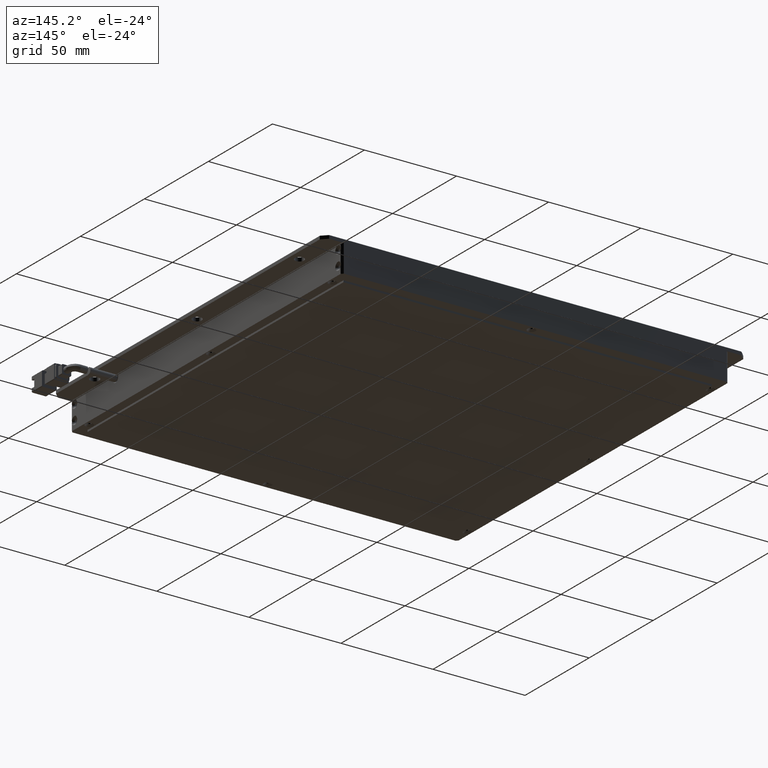
[diagram: clean part render]
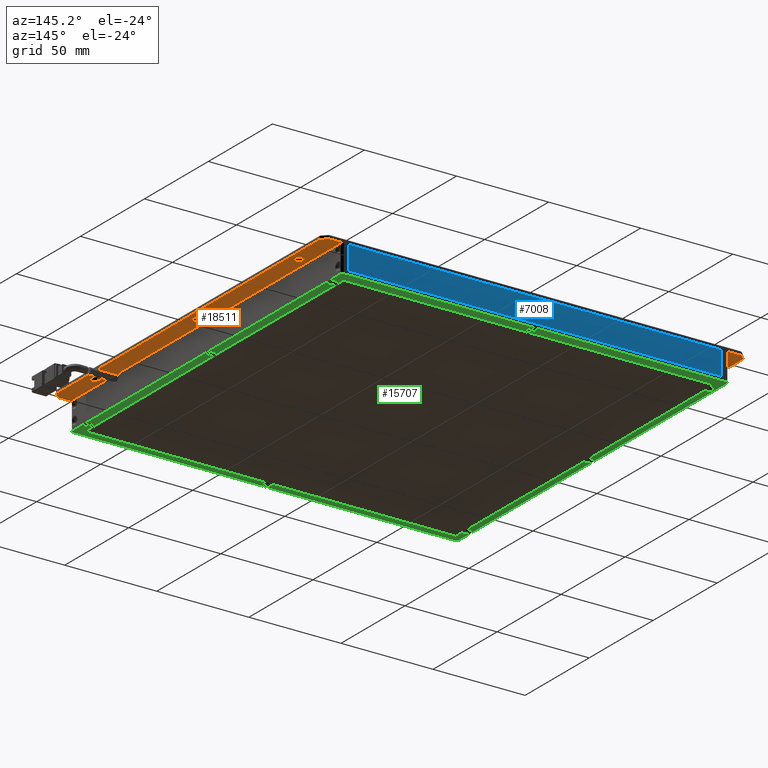
[diagram: same view with three faces highlighted in distinct colors, each labeled with its STEP entity id]
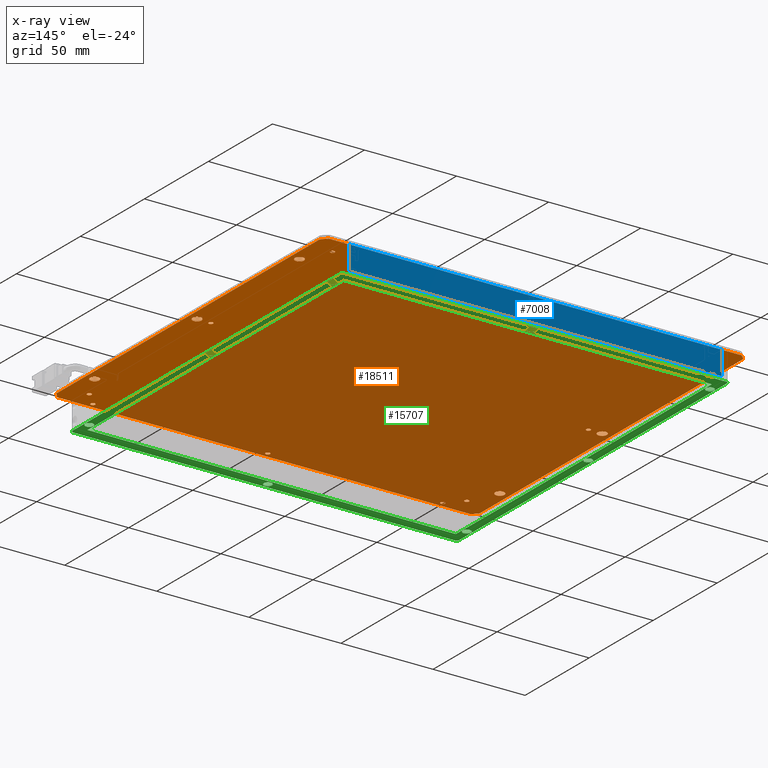
[diagram: x-ray of the same camera — body ghosted, the three highlighted faces saturated]
A machine part, auxiliary view with three faces highlighted in distinct colors.
The next image is the same camera in x-ray (body ghosted, the three faces saturated) — at least one of them is partly hidden behind the body in this view.
Their STEP definitions:

[orange] entity #18511 — the highlighted planar face has unit normal (0, -0, 1).
#229 = FACE_BOUND ( 'NONE', #9982, .T. ) ;
#246 = AXIS2_PLACEMENT_3D ( 'NONE', #10545, #17458, #5450 ) ;
#363 = LINE ( 'NONE', #4861, #6074 ) ;
#393 = EDGE_LOOP ( 'NONE', ( #5492, #12979 ) ) ;
#531 = CARTESIAN_POINT ( 'NONE',  ( -88.83424941752386400, -33.37875398278082900, -2.364688306277784600E-011 ) ) ;
#756 = CARTESIAN_POINT ( 'NONE',  ( 121.1657505824761100, -33.37875398278082900, -2.364644938190885200E-011 ) ) ;
#970 = ORIENTED_EDGE ( 'NONE', *, *, #3923, .F. ) ;
#990 = DIRECTION ( 'NONE',  ( 1.000000000000000000, 0.0000000000000000000, 0.0000000000000000000 ) ) ;
#1039 = VECTOR ( 'NONE', #12226, 1000.000000000000000 ) ;
#1086 = DIRECTION ( 'NONE',  ( 0.0000000000000000000, 0.0000000000000000000, -1.000000000000000000 ) ) ;
#1169 = DIRECTION ( 'NONE',  ( 0.0000000000000000000, 0.0000000000000000000, -1.000000000000000000 ) ) ;
#1347 = AXIS2_PLACEMENT_3D ( 'NONE', #6869, #13726, #13489 ) ;
#1349 = FACE_BOUND ( 'NONE', #15495, .T. ) ;
#1381 = AXIS2_PLACEMENT_3D ( 'NONE', #8571, #3570, #5157 ) ;
#1403 = DIRECTION ( 'NONE',  ( 1.000000000000000000, 0.0000000000000000000, 0.0000000000000000000 ) ) ;
#1480 = CIRCLE ( 'NONE', #15831, 1.199999999999992600 ) ;
#1505 = ORIENTED_EDGE ( 'NONE', *, *, #2683, .F. ) ;
#1537 = DIRECTION ( 'NONE',  ( 1.000000000000000000, 0.0000000000000000000, 0.0000000000000000000 ) ) ;
#1557 = CARTESIAN_POINT ( 'NONE',  ( -83.83424941752389300, 61.62124601721919200, -2.364644938190885200E-011 ) ) ;
#1694 = ORIENTED_EDGE ( 'NONE', *, *, #6969, .F. ) ;
#1795 = CIRCLE ( 'NONE', #19527, 2.500000000000002200 ) ;
#1838 = ORIENTED_EDGE ( 'NONE', *, *, #10599, .F. ) ;
#1847 = ORIENTED_EDGE ( 'NONE', *, *, #4278, .F. ) ;
#1885 = FACE_BOUND ( 'NONE', #19347, .T. ) ;
#2017 = ORIENTED_EDGE ( 'NONE', *, *, #8278, .F. ) ;
#2040 = EDGE_LOOP ( 'NONE', ( #5732, #1694 ) ) ;
#2111 = DIRECTION ( 'NONE',  ( 0.0000000000000000000, 0.0000000000000000000, -1.000000000000000000 ) ) ;
#2122 = ORIENTED_EDGE ( 'NONE', *, *, #6072, .F. ) ;
#2139 = DIRECTION ( 'NONE',  ( 0.0000000000000000000, 0.0000000000000000000, -1.000000000000000000 ) ) ;
#2318 = EDGE_LOOP ( 'NONE', ( #2122, #6669 ) ) ;
#2326 = EDGE_CURVE ( 'NONE', #3457, #10579, #20048, .T. ) ;
#2382 = ORIENTED_EDGE ( 'NONE', *, *, #3903, .F. ) ;
#2413 = AXIS2_PLACEMENT_3D ( 'NONE', #10281, #12112, #3381 ) ;
#2480 = AXIS2_PLACEMENT_3D ( 'NONE', #11368, #4467, #2951 ) ;
#2683 = EDGE_CURVE ( 'NONE', #6189, #16360, #12439, .T. ) ;
#2758 = AXIS2_PLACEMENT_3D ( 'NONE', #8763, #12353, #15868 ) ;
#2864 = EDGE_CURVE ( 'NONE', #21563, #21719, #5620, .T. ) ;
#2893 = ORIENTED_EDGE ( 'NONE', *, *, #2326, .F. ) ;
#2951 = DIRECTION ( 'NONE',  ( 1.000000000000000000, 0.0000000000000000000, 0.0000000000000000000 ) ) ;
#3143 = AXIS2_PLACEMENT_3D ( 'NONE', #4461, #16324, #21676 ) ;
#3197 = VERTEX_POINT ( 'NONE', #13739 ) ;
#3333 = CARTESIAN_POINT ( 'NONE',  ( 119.9657505824761000, -128.3787539827808100, -2.364644938190885200E-011 ) ) ;
#3381 = DIRECTION ( 'NONE',  ( 1.000000000000000000, 0.0000000000000000000, 0.0000000000000000000 ) ) ;
#3402 = DIRECTION ( 'NONE',  ( 0.0000000000000000000, 0.0000000000000000000, -1.000000000000000000 ) ) ;
#3428 = PLANE ( 'NONE',  #1381 ) ;
#3447 = CARTESIAN_POINT ( 'NONE',  ( 131.1657505824760800, 46.62124601721915000, -2.364688306277784600E-011 ) ) ;
#3451 = EDGE_CURVE ( 'NONE', #6651, #6008, #8259, .T. ) ;
#3457 = VERTEX_POINT ( 'NONE', #17190 ) ;
#3515 = EDGE_CURVE ( 'NONE', #4944, #3197, #21308, .T. ) ;
#3570 = DIRECTION ( 'NONE',  ( 0.0000000000000000000, -0.0000000000000000000, 1.000000000000000000 ) ) ;
#3644 = ORIENTED_EDGE ( 'NONE', *, *, #9974, .F. ) ;
#3685 = CARTESIAN_POINT ( 'NONE',  ( -93.33424941752387800, 72.62124601721916400, -2.364688306277784600E-011 ) ) ;
#3828 = AXIS2_PLACEMENT_3D ( 'NONE', #11289, #6368, #20378 ) ;
#3838 = VERTEX_POINT ( 'NONE', #18223 ) ;
#3846 = CIRCLE ( 'NONE', #13163, 1.200000000000006600 ) ;
#3903 = EDGE_CURVE ( 'NONE', #4430, #12805, #363, .T. ) ;
#3923 = EDGE_CURVE ( 'NONE', #21719, #21563, #1480, .T. ) ;
#4054 = DIRECTION ( 'NONE',  ( 1.000000000000000000, 0.0000000000000000000, 0.0000000000000000000 ) ) ;
#4114 = CARTESIAN_POINT ( 'NONE',  ( 122.3657505824761200, -128.3787539827808100, -2.364644938190885200E-011 ) ) ;
#4120 = DIRECTION ( 'NONE',  ( 0.0000000000000000000, 0.0000000000000000000, -1.000000000000000000 ) ) ;
#4189 = EDGE_CURVE ( 'NONE', #10642, #8831, #13202, .T. ) ;
#4218 = EDGE_LOOP ( 'NONE', ( #21781, #16938 ) ) ;
#4219 = VERTEX_POINT ( 'NONE', #531 ) ;
#4223 = EDGE_CURVE ( 'NONE', #11342, #7934, #6146, .T. ) ;
#4278 = EDGE_CURVE ( 'NONE', #9821, #19799, #16460, .T. ) ;
#4299 = DIRECTION ( 'NONE',  ( 0.0000000000000000000, 0.0000000000000000000, -1.000000000000000000 ) ) ;
#4302 = FACE_BOUND ( 'NONE', #19596, .T. ) ;
#4306 = DIRECTION ( 'NONE',  ( 1.000000000000000000, 0.0000000000000000000, 0.0000000000000000000 ) ) ;
#4316 = DIRECTION ( 'NONE',  ( 0.0000000000000000000, 0.0000000000000000000, -1.000000000000000000 ) ) ;
#4332 = EDGE_CURVE ( 'NONE', #3197, #4944, #22422, .T. ) ;
#4335 = DIRECTION ( 'NONE',  ( 0.0000000000000000000, 0.0000000000000000000, -1.000000000000000000 ) ) ;
#4395 = EDGE_LOOP ( 'NONE', ( #970, #11569 ) ) ;
#4422 = CARTESIAN_POINT ( 'NONE',  ( -82.63424941752387600, -33.37875398278082900, -2.364644938190885200E-011 ) ) ;
#4430 = VERTEX_POINT ( 'NONE', #17066 ) ;
#4460 = DIRECTION ( 'NONE',  ( -0.0000000000000000000, -1.000000000000000000, -0.0000000000000000000 ) ) ;
#4461 = CARTESIAN_POINT ( 'NONE',  ( 121.1657505824760500, 61.62124601721919200, -2.364644938190885200E-011 ) ) ;
#4467 = DIRECTION ( 'NONE',  ( 0.0000000000000000000, 0.0000000000000000000, -1.000000000000000000 ) ) ;
#4541 = ORIENTED_EDGE ( 'NONE', *, *, #4189, .F. ) ;
#4589 = FACE_BOUND ( 'NONE', #14136, .T. ) ;
#4597 = VERTEX_POINT ( 'NONE', #3447 ) ;
#4707 = VERTEX_POINT ( 'NONE', #10794 ) ;
#4861 = CARTESIAN_POINT ( 'NONE',  ( -96.33424941752389300, -136.3787539827808100, -2.364688306277784600E-011 ) ) ;
#4944 = VERTEX_POINT ( 'NONE', #11319 ) ;
#5043 = DIRECTION ( 'NONE',  ( 1.000000000000000000, 0.0000000000000000000, 0.0000000000000000000 ) ) ;
#5048 = EDGE_LOOP ( 'NONE', ( #17440, #21914 ) ) ;
#5121 = CIRCLE ( 'NONE', #20062, 1.200000000000006600 ) ;
#5157 = DIRECTION ( 'NONE',  ( 1.000000000000000000, 0.0000000000000000000, -0.0000000000000000000 ) ) ;
#5428 = DIRECTION ( 'NONE',  ( 0.0000000000000000000, 0.0000000000000000000, -1.000000000000000000 ) ) ;
#5450 = DIRECTION ( 'NONE',  ( 1.000000000000000000, 0.0000000000000000000, 0.0000000000000000000 ) ) ;
#5477 = ORIENTED_EDGE ( 'NONE', *, *, #19815, .F. ) ;
#5489 = CARTESIAN_POINT ( 'NONE',  ( -91.33424941752386400, -113.3787539827808200, -2.364688306277784600E-011 ) ) ;
#5492 = ORIENTED_EDGE ( 'NONE', *, *, #4332, .F. ) ;
#5505 = EDGE_LOOP ( 'NONE', ( #16513, #2017 ) ) ;
#5620 = CIRCLE ( 'NONE', #21034, 1.199999999999992600 ) ;
#5684 = DIRECTION ( 'NONE',  ( 1.000000000000000000, 0.0000000000000000000, 0.0000000000000000000 ) ) ;
#5732 = ORIENTED_EDGE ( 'NONE', *, *, #8808, .F. ) ;
#5745 = DIRECTION ( 'NONE',  ( 1.000000000000000000, 0.0000000000000000000, 0.0000000000000000000 ) ) ;
#5772 = EDGE_CURVE ( 'NONE', #15290, #15230, #17116, .T. ) ;
#5828 = ORIENTED_EDGE ( 'NONE', *, *, #21534, .F. ) ;
#5901 = AXIS2_PLACEMENT_3D ( 'NONE', #16323, #11357, #4306 ) ;
#5939 = FACE_BOUND ( 'NONE', #2318, .T. ) ;
#6008 = VERTEX_POINT ( 'NONE', #14320 ) ;
#6049 = VERTEX_POINT ( 'NONE', #4114 ) ;
#6072 = EDGE_CURVE ( 'NONE', #6049, #7483, #5121, .T. ) ;
#6074 = VECTOR ( 'NONE', #22185, 1000.000000000000100 ) ;
#6102 = DIRECTION ( 'NONE',  ( 1.000000000000000000, 0.0000000000000000000, 0.0000000000000000000 ) ) ;
#6139 = CARTESIAN_POINT ( 'NONE',  ( 113.6657505824760800, 69.62124601721916400, -2.364644938190885200E-011 ) ) ;
#6146 = CIRCLE ( 'NONE', #14671, 1.200000000000006600 ) ;
#6169 = CARTESIAN_POINT ( 'NONE',  ( -91.33424941752386400, -113.3787539827808200, -2.364688306277784600E-011 ) ) ;
#6189 = VERTEX_POINT ( 'NONE', #9548 ) ;
#6223 = CARTESIAN_POINT ( 'NONE',  ( 126.1657505824760600, -113.3787539827808200, -2.364688306277784600E-011 ) ) ;
#6277 = EDGE_LOOP ( 'NONE', ( #11247, #6819 ) ) ;
#6312 = VERTEX_POINT ( 'NONE', #22480 ) ;
#6316 = DIRECTION ( 'NONE',  ( 1.000000000000000000, 0.0000000000000000000, 0.0000000000000000000 ) ) ;
#6368 = DIRECTION ( 'NONE',  ( 0.0000000000000000000, 0.0000000000000000000, -1.000000000000000000 ) ) ;
#6372 = DIRECTION ( 'NONE',  ( 0.0000000000000000000, 0.0000000000000000000, -1.000000000000000000 ) ) ;
#6400 = CARTESIAN_POINT ( 'NONE',  ( 121.1657505824761100, -33.37875398278082900, -2.364644938190885200E-011 ) ) ;
#6604 = ORIENTED_EDGE ( 'NONE', *, *, #14075, .F. ) ;
#6651 = VERTEX_POINT ( 'NONE', #20022 ) ;
#6669 = ORIENTED_EDGE ( 'NONE', *, *, #19528, .F. ) ;
#6678 = AXIS2_PLACEMENT_3D ( 'NONE', #18427, #6372, #990 ) ;
#6739 = EDGE_CURVE ( 'NONE', #6312, #4597, #18640, .T. ) ;
#6758 = CIRCLE ( 'NONE', #11581, 2.500000000000002200 ) ;
#6819 = ORIENTED_EDGE ( 'NONE', *, *, #16430, .F. ) ;
#6862 = DIRECTION ( 'NONE',  ( 0.0000000000000000000, 0.0000000000000000000, -1.000000000000000000 ) ) ;
#6869 = CARTESIAN_POINT ( 'NONE',  ( -83.83424941752387800, -33.37875398278082900, -2.364644938190885200E-011 ) ) ;
#6963 = CARTESIAN_POINT ( 'NONE',  ( -83.83424941752387800, -128.3787539827808100, -2.364644938190885200E-011 ) ) ;
#6969 = EDGE_CURVE ( 'NONE', #14372, #11643, #20606, .T. ) ;
#7028 = CARTESIAN_POINT ( 'NONE',  ( -83.83424941752387800, -33.37875398278082900, -2.364644938190885200E-011 ) ) ;
#7084 = CARTESIAN_POINT ( 'NONE',  ( -93.33424941752387800, 72.62124601721916400, -2.364753358408133700E-011 ) ) ;
#7088 = VERTEX_POINT ( 'NONE', #9322 ) ;
#7100 = EDGE_CURVE ( 'NONE', #7842, #18027, #11616, .T. ) ;
#7103 = CIRCLE ( 'NONE', #8057, 2.500000000000002200 ) ;
#7113 = DIRECTION ( 'NONE',  ( -0.7071067811865474600, -0.7071067811865474600, 0.0000000000000000000 ) ) ;
#7141 = ORIENTED_EDGE ( 'NONE', *, *, #6739, .F. ) ;
#7298 = AXIS2_PLACEMENT_3D ( 'NONE', #12431, #5428, #12276 ) ;
#7389 = CIRCLE ( 'NONE', #12724, 1.200000000000006600 ) ;
#7448 = CARTESIAN_POINT ( 'NONE',  ( 133.6657505824761400, 72.62124601721916400, -2.364688306277784600E-011 ) ) ;
#7458 = EDGE_LOOP ( 'NONE', ( #11681, #18281 ) ) ;
#7483 = VERTEX_POINT ( 'NONE', #3333 ) ;
#7500 = CARTESIAN_POINT ( 'NONE',  ( 122.3657505824760700, 61.62124601721919200, -2.364644938190885200E-011 ) ) ;
#7564 = CARTESIAN_POINT ( 'NONE',  ( -85.03424941752388100, 61.62124601721919200, -2.364644938190885200E-011 ) ) ;
#7641 = CARTESIAN_POINT ( 'NONE',  ( -83.83424941752389300, 61.62124601721919200, -2.364644938190885200E-011 ) ) ;
#7761 = CARTESIAN_POINT ( 'NONE',  ( 113.6657505824761600, -136.3787539827808900, -2.364644938190885200E-011 ) ) ;
#7838 = EDGE_CURVE ( 'NONE', #12805, #13879, #22136, .T. ) ;
#7842 = VERTEX_POINT ( 'NONE', #22521 ) ;
#7861 = DIRECTION ( 'NONE',  ( 1.000000000000000000, 0.0000000000000000000, 0.0000000000000000000 ) ) ;
#7926 = VERTEX_POINT ( 'NONE', #10586 ) ;
#7934 = VERTEX_POINT ( 'NONE', #12255 ) ;
#7975 = EDGE_LOOP ( 'NONE', ( #14223, #18965 ) ) ;
#8057 = AXIS2_PLACEMENT_3D ( 'NONE', #20838, #6862, #5043 ) ;
#8109 = FACE_BOUND ( 'NONE', #4395, .T. ) ;
#8140 = CARTESIAN_POINT ( 'NONE',  ( -96.33424941752389300, 69.62124601721916400, -2.364753358408133700E-011 ) ) ;
#8158 = AXIS2_PLACEMENT_3D ( 'NONE', #6139, #4299, #7861 ) ;
#8230 = CIRCLE ( 'NONE', #12599, 1.200000000000006600 ) ;
#8232 = ORIENTED_EDGE ( 'NONE', *, *, #9666, .F. ) ;
#8259 = CIRCLE ( 'NONE', #18569, 1.200000000000006600 ) ;
#8278 = EDGE_CURVE ( 'NONE', #15230, #15290, #8230, .T. ) ;
#8430 = CARTESIAN_POINT ( 'NONE',  ( 133.6657505824760800, 69.62124601721916400, -2.364688306277784600E-011 ) ) ;
#8450 = CARTESIAN_POINT ( 'NONE',  ( 133.6657505824760800, -139.3787539827808400, -2.364688306277784600E-011 ) ) ;
#8497 = EDGE_LOOP ( 'NONE', ( #9685, #4541 ) ) ;
#8539 = VERTEX_POINT ( 'NONE', #21887 ) ;
#8571 = CARTESIAN_POINT ( 'NONE',  ( 133.6657505824760800, 72.62124601721916400, -2.364688306277784600E-011 ) ) ;
#8601 = DIRECTION ( 'NONE',  ( 0.0000000000000000000, 0.0000000000000000000, -1.000000000000000000 ) ) ;
#8763 = CARTESIAN_POINT ( 'NONE',  ( -76.33424941752390700, 69.62124601721916400, -2.364644938190885200E-011 ) ) ;
#8808 = EDGE_CURVE ( 'NONE', #11643, #14372, #7103, .T. ) ;
#8831 = VERTEX_POINT ( 'NONE', #17185 ) ;
#8866 = DIRECTION ( 'NONE',  ( 1.000000000000000000, 0.0000000000000000000, 0.0000000000000000000 ) ) ;
#8904 = FACE_BOUND ( 'NONE', #6277, .T. ) ;
#8914 = ORIENTED_EDGE ( 'NONE', *, *, #18481, .F. ) ;
#8930 = CARTESIAN_POINT ( 'NONE',  ( 18.66575058247609000, 69.62124601721916400, -2.364644938190885200E-011 ) ) ;
#8960 = CARTESIAN_POINT ( 'NONE',  ( 18.66575058247609000, -136.3787539827808600, -2.364644938190885200E-011 ) ) ;
#8968 = CARTESIAN_POINT ( 'NONE',  ( -75.13424941752391800, 69.62124601721916400, -2.364644938190885200E-011 ) ) ;
#8985 = ORIENTED_EDGE ( 'NONE', *, *, #10004, .F. ) ;
#9173 = FACE_BOUND ( 'NONE', #2040, .T. ) ;
#9322 = CARTESIAN_POINT ( 'NONE',  ( -77.53424941752391000, -136.3787539827808100, -2.364644938190885200E-011 ) ) ;
#9541 = DIRECTION ( 'NONE',  ( 1.000000000000000000, 0.0000000000000000000, 0.0000000000000000000 ) ) ;
#9548 = CARTESIAN_POINT ( 'NONE',  ( 112.4657505824761500, -136.3787539827808900, -2.364644938190885200E-011 ) ) ;
#9605 = AXIS2_PLACEMENT_3D ( 'NONE', #6963, #8601, #15342 ) ;
#9653 = EDGE_CURVE ( 'NONE', #19575, #20919, #18742, .T. ) ;
#9657 = CIRCLE ( 'NONE', #3143, 1.200000000000006600 ) ;
#9666 = EDGE_CURVE ( 'NONE', #12845, #4430, #15500, .T. ) ;
#9685 = ORIENTED_EDGE ( 'NONE', *, *, #21090, .F. ) ;
#9706 = CARTESIAN_POINT ( 'NONE',  ( -91.33424941752386400, -33.37875398278082900, -2.364688306277784600E-011 ) ) ;
#9733 = FACE_BOUND ( 'NONE', #8497, .T. ) ;
#9821 = VERTEX_POINT ( 'NONE', #9827 ) ;
#9827 = CARTESIAN_POINT ( 'NONE',  ( -88.83424941752387800, 46.62124601721917800, -2.364688306277784600E-011 ) ) ;
#9865 = DIRECTION ( 'NONE',  ( 0.0000000000000000000, 0.0000000000000000000, -1.000000000000000000 ) ) ;
#9974 = EDGE_CURVE ( 'NONE', #7926, #14222, #10749, .T. ) ;
#9978 = VECTOR ( 'NONE', #19729, 1000.000000000000000 ) ;
#9982 = EDGE_LOOP ( 'NONE', ( #10178, #6604 ) ) ;
#10004 = EDGE_CURVE ( 'NONE', #10579, #12845, #17557, .T. ) ;
#10093 = DIRECTION ( 'NONE',  ( 1.000000000000000000, 0.0000000000000000000, 0.0000000000000000000 ) ) ;
#10123 = AXIS2_PLACEMENT_3D ( 'NONE', #10670, #2111, #19312 ) ;
#10130 = CARTESIAN_POINT ( 'NONE',  ( 114.8657505824761700, -136.3787539827808900, -2.364644938190885200E-011 ) ) ;
#10147 = EDGE_CURVE ( 'NONE', #4597, #6312, #15657, .T. ) ;
#10178 = ORIENTED_EDGE ( 'NONE', *, *, #14400, .F. ) ;
#10219 = CARTESIAN_POINT ( 'NONE',  ( -82.63424941752390400, 61.62124601721919200, -2.364644938190885200E-011 ) ) ;
#10281 = CARTESIAN_POINT ( 'NONE',  ( -91.33424941752387800, 46.62124601721917800, -2.364688306277784600E-011 ) ) ;
#10345 = VERTEX_POINT ( 'NONE', #14786 ) ;
#10440 = DIRECTION ( 'NONE',  ( 1.000000000000000000, 0.0000000000000000000, 0.0000000000000000000 ) ) ;
#10522 = CIRCLE ( 'NONE', #15481, 1.199999999999992600 ) ;
#10545 = CARTESIAN_POINT ( 'NONE',  ( 128.6657505824760500, -113.3787539827808200, -2.364688306277784600E-011 ) ) ;
#10563 = CARTESIAN_POINT ( 'NONE',  ( -76.33424941752390700, 69.62124601721916400, -2.364644938190885200E-011 ) ) ;
#10579 = VERTEX_POINT ( 'NONE', #7084 ) ;
#10586 = CARTESIAN_POINT ( 'NONE',  ( 119.9657505824760500, 61.62124601721919200, -2.364644938190885200E-011 ) ) ;
#10599 = EDGE_CURVE ( 'NONE', #18027, #3457, #20200, .T. ) ;
#10642 = VERTEX_POINT ( 'NONE', #22430 ) ;
#10670 = CARTESIAN_POINT ( 'NONE',  ( 121.1657505824760500, 61.62124601721919200, -2.364644938190885200E-011 ) ) ;
#10749 = CIRCLE ( 'NONE', #10123, 1.200000000000006600 ) ;
#10794 = CARTESIAN_POINT ( 'NONE',  ( -88.83424941752386400, -113.3787539827808200, -2.364688306277784600E-011 ) ) ;
#10817 = ORIENTED_EDGE ( 'NONE', *, *, #17753, .F. ) ;
#10837 = VECTOR ( 'NONE', #4460, 1000.000000000000000 ) ;
#10992 = DIRECTION ( 'NONE',  ( 1.000000000000000000, 0.0000000000000000000, 0.0000000000000000000 ) ) ;
#11014 = AXIS2_PLACEMENT_3D ( 'NONE', #8930, #19566, #8866 ) ;
#11065 = DIRECTION ( 'NONE',  ( 0.0000000000000000000, 0.0000000000000000000, -1.000000000000000000 ) ) ;
#11247 = ORIENTED_EDGE ( 'NONE', *, *, #12902, .F. ) ;
#11289 = CARTESIAN_POINT ( 'NONE',  ( -76.33424941752390700, -136.3787539827808100, -2.364644938190885200E-011 ) ) ;
#11296 = DIRECTION ( 'NONE',  ( 1.000000000000000000, 0.0000000000000000000, 0.0000000000000000000 ) ) ;
#11319 = CARTESIAN_POINT ( 'NONE',  ( 17.46575058247609700, -136.3787539827808600, -2.364644938190885200E-011 ) ) ;
#11342 = VERTEX_POINT ( 'NONE', #15547 ) ;
#11357 = DIRECTION ( 'NONE',  ( 0.0000000000000000000, 0.0000000000000000000, -1.000000000000000000 ) ) ;
#11368 = CARTESIAN_POINT ( 'NONE',  ( 18.66575058247609000, -136.3787539827808600, -2.364644938190885200E-011 ) ) ;
#11480 = CARTESIAN_POINT ( 'NONE',  ( -93.33424941752387800, -139.3787539827808400, -2.364688306277784600E-011 ) ) ;
#11522 = ORIENTED_EDGE ( 'NONE', *, *, #7838, .F. ) ;
#11525 = DIRECTION ( 'NONE',  ( 1.000000000000000000, 0.0000000000000000000, 0.0000000000000000000 ) ) ;
#11526 = VERTEX_POINT ( 'NONE', #18443 ) ;
#11569 = ORIENTED_EDGE ( 'NONE', *, *, #2864, .F. ) ;
#11575 = AXIS2_PLACEMENT_3D ( 'NONE', #8960, #21207, #15848 ) ;
#11581 = AXIS2_PLACEMENT_3D ( 'NONE', #9706, #1086, #6102 ) ;
#11616 = LINE ( 'NONE', #7448, #9978 ) ;
#11633 = LINE ( 'NONE', #19149, #20886 ) ;
#11643 = VERTEX_POINT ( 'NONE', #17148 ) ;
#11681 = ORIENTED_EDGE ( 'NONE', *, *, #15125, .F. ) ;
#11714 = CARTESIAN_POINT ( 'NONE',  ( -93.83424941752386400, -33.37875398278082900, -2.364688306277784600E-011 ) ) ;
#11904 = CARTESIAN_POINT ( 'NONE',  ( 113.6657505824760800, 69.62124601721916400, -2.364644938190885200E-011 ) ) ;
#12112 = DIRECTION ( 'NONE',  ( 0.0000000000000000000, 0.0000000000000000000, -1.000000000000000000 ) ) ;
#12176 = DIRECTION ( 'NONE',  ( 0.0000000000000000000, 0.0000000000000000000, -1.000000000000000000 ) ) ;
#12226 = DIRECTION ( 'NONE',  ( -1.000000000000000000, -0.0000000000000000000, 0.0000000000000000000 ) ) ;
#12255 = CARTESIAN_POINT ( 'NONE',  ( 122.3657505824761200, -33.37875398278082900, -2.364644938190885200E-011 ) ) ;
#12276 = DIRECTION ( 'NONE',  ( 1.000000000000000000, 0.0000000000000000000, 0.0000000000000000000 ) ) ;
#12296 = DIRECTION ( 'NONE',  ( 1.000000000000000000, 0.0000000000000000000, 0.0000000000000000000 ) ) ;
#12353 = DIRECTION ( 'NONE',  ( 0.0000000000000000000, 0.0000000000000000000, -1.000000000000000000 ) ) ;
#12431 = CARTESIAN_POINT ( 'NONE',  ( 128.6657505824760500, -33.37875398278082900, -2.364688306277784600E-011 ) ) ;
#12439 = CIRCLE ( 'NONE', #17805, 1.200000000000006600 ) ;
#12599 = AXIS2_PLACEMENT_3D ( 'NONE', #7028, #13876, #22523 ) ;
#12724 = AXIS2_PLACEMENT_3D ( 'NONE', #11904, #3402, #1537 ) ;
#12734 = FACE_BOUND ( 'NONE', #5505, .T. ) ;
#12805 = VERTEX_POINT ( 'NONE', #11480 ) ;
#12812 = DIRECTION ( 'NONE',  ( 0.0000000000000000000, 0.0000000000000000000, -1.000000000000000000 ) ) ;
#12845 = VERTEX_POINT ( 'NONE', #8140 ) ;
#12902 = EDGE_CURVE ( 'NONE', #18157, #10345, #14861, .T. ) ;
#12979 = ORIENTED_EDGE ( 'NONE', *, *, #3515, .F. ) ;
#13163 = AXIS2_PLACEMENT_3D ( 'NONE', #19429, #2139, #5684 ) ;
#13202 = CIRCLE ( 'NONE', #11014, 1.199999999999992600 ) ;
#13376 = CARTESIAN_POINT ( 'NONE',  ( 130.6657505824761100, -139.3787539827808400, -2.364720832342959200E-011 ) ) ;
#13392 = VERTEX_POINT ( 'NONE', #19050 ) ;
#13429 = VECTOR ( 'NONE', #13711, 1000.000000000000100 ) ;
#13456 = CIRCLE ( 'NONE', #18229, 2.500000000000002200 ) ;
#13489 = DIRECTION ( 'NONE',  ( 1.000000000000000000, 0.0000000000000000000, 0.0000000000000000000 ) ) ;
#13711 = DIRECTION ( 'NONE',  ( -0.7071067811865474600, 0.7071067811865474600, 0.0000000000000000000 ) ) ;
#13726 = DIRECTION ( 'NONE',  ( 0.0000000000000000000, 0.0000000000000000000, -1.000000000000000000 ) ) ;
#13739 = CARTESIAN_POINT ( 'NONE',  ( 19.86575058247608200, -136.3787539827808600, -2.364644938190885200E-011 ) ) ;
#13799 = EDGE_CURVE ( 'NONE', #16707, #4219, #13456, .T. ) ;
#13826 = EDGE_CURVE ( 'NONE', #13392, #4707, #1795, .T. ) ;
#13847 = FACE_BOUND ( 'NONE', #5048, .T. ) ;
#13876 = DIRECTION ( 'NONE',  ( 0.0000000000000000000, 0.0000000000000000000, -1.000000000000000000 ) ) ;
#13879 = VERTEX_POINT ( 'NONE', #13376 ) ;
#13918 = DIRECTION ( 'NONE',  ( 0.0000000000000000000, 0.0000000000000000000, -1.000000000000000000 ) ) ;
#14075 = EDGE_CURVE ( 'NONE', #7088, #8539, #20203, .T. ) ;
#14136 = EDGE_LOOP ( 'NONE', ( #21466, #7141 ) ) ;
#14222 = VERTEX_POINT ( 'NONE', #7500 ) ;
#14223 = ORIENTED_EDGE ( 'NONE', *, *, #18000, .F. ) ;
#14320 = CARTESIAN_POINT ( 'NONE',  ( -82.63424941752387600, -128.3787539827808100, -2.364644938190885200E-011 ) ) ;
#14372 = VERTEX_POINT ( 'NONE', #19851 ) ;
#14395 = DIRECTION ( 'NONE',  ( 1.000000000000000000, 0.0000000000000000000, 0.0000000000000000000 ) ) ;
#14397 = FACE_BOUND ( 'NONE', #7975, .T. ) ;
#14400 = EDGE_CURVE ( 'NONE', #8539, #7088, #17733, .T. ) ;
#14484 = CARTESIAN_POINT ( 'NONE',  ( 128.6657505824760500, 46.62124601721915000, -2.364688306277784600E-011 ) ) ;
#14655 = FACE_BOUND ( 'NONE', #16285, .T. ) ;
#14671 = AXIS2_PLACEMENT_3D ( 'NONE', #756, #11065, #21682 ) ;
#14678 = AXIS2_PLACEMENT_3D ( 'NONE', #14484, #18025, #4054 ) ;
#14786 = CARTESIAN_POINT ( 'NONE',  ( -77.53424941752391000, 69.62124601721916400, -2.364644938190885200E-011 ) ) ;
#14857 = VECTOR ( 'NONE', #7113, 1000.000000000000100 ) ;
#14861 = CIRCLE ( 'NONE', #19360, 1.199999999999992600 ) ;
#14966 = EDGE_CURVE ( 'NONE', #19799, #9821, #16102, .T. ) ;
#15071 = EDGE_LOOP ( 'NONE', ( #5828, #3644 ) ) ;
#15125 = EDGE_CURVE ( 'NONE', #4707, #13392, #21753, .T. ) ;
#15230 = VERTEX_POINT ( 'NONE', #16071 ) ;
#15290 = VERTEX_POINT ( 'NONE', #4422 ) ;
#15307 = AXIS2_PLACEMENT_3D ( 'NONE', #19855, #4316, #11296 ) ;
#15341 = DIRECTION ( 'NONE',  ( 1.000000000000000000, 0.0000000000000000000, -0.0000000000000000000 ) ) ;
#15342 = DIRECTION ( 'NONE',  ( 1.000000000000000000, 0.0000000000000000000, 0.0000000000000000000 ) ) ;
#15435 = EDGE_CURVE ( 'NONE', #7934, #11342, #17378, .T. ) ;
#15481 = AXIS2_PLACEMENT_3D ( 'NONE', #16035, #17898, #10992 ) ;
#15495 = EDGE_LOOP ( 'NONE', ( #10817, #5477 ) ) ;
#15500 = LINE ( 'NONE', #19768, #10837 ) ;
#15541 = ORIENTED_EDGE ( 'NONE', *, *, #14966, .F. ) ;
#15547 = CARTESIAN_POINT ( 'NONE',  ( 119.9657505824761000, -33.37875398278082900, -2.364644938190885200E-011 ) ) ;
#15657 = CIRCLE ( 'NONE', #14678, 2.500000000000002200 ) ;
#15734 = CARTESIAN_POINT ( 'NONE',  ( 131.1657505824760800, -113.3787539827808200, -2.364688306277784600E-011 ) ) ;
#15745 = EDGE_CURVE ( 'NONE', #20919, #19575, #17085, .T. ) ;
#15784 = CIRCLE ( 'NONE', #9605, 1.200000000000006600 ) ;
#15831 = AXIS2_PLACEMENT_3D ( 'NONE', #1557, #18685, #1403 ) ;
#15848 = DIRECTION ( 'NONE',  ( 1.000000000000000000, 0.0000000000000000000, 0.0000000000000000000 ) ) ;
#15868 = DIRECTION ( 'NONE',  ( 1.000000000000000000, 0.0000000000000000000, 0.0000000000000000000 ) ) ;
#15992 = EDGE_CURVE ( 'NONE', #16360, #6189, #19762, .T. ) ;
#16035 = CARTESIAN_POINT ( 'NONE',  ( 18.66575058247609000, 69.62124601721916400, -2.364644938190885200E-011 ) ) ;
#16071 = CARTESIAN_POINT ( 'NONE',  ( -85.03424941752388100, -33.37875398278082900, -2.364644938190885200E-011 ) ) ;
#16102 = CIRCLE ( 'NONE', #2413, 2.500000000000002200 ) ;
#16282 = DIRECTION ( 'NONE',  ( 0.0000000000000000000, 0.0000000000000000000, -1.000000000000000000 ) ) ;
#16285 = EDGE_LOOP ( 'NONE', ( #16386, #1505 ) ) ;
#16288 = DIRECTION ( 'NONE',  ( 1.000000000000000000, 0.0000000000000000000, 0.0000000000000000000 ) ) ;
#16323 = CARTESIAN_POINT ( 'NONE',  ( 128.6657505824760500, -113.3787539827808200, -2.364688306277784600E-011 ) ) ;
#16324 = DIRECTION ( 'NONE',  ( 0.0000000000000000000, 0.0000000000000000000, -1.000000000000000000 ) ) ;
#16360 = VERTEX_POINT ( 'NONE', #10130 ) ;
#16386 = ORIENTED_EDGE ( 'NONE', *, *, #15992, .F. ) ;
#16430 = EDGE_CURVE ( 'NONE', #10345, #18157, #22200, .T. ) ;
#16460 = CIRCLE ( 'NONE', #15307, 2.500000000000002200 ) ;
#16513 = ORIENTED_EDGE ( 'NONE', *, *, #5772, .F. ) ;
#16639 = CARTESIAN_POINT ( 'NONE',  ( -91.33424941752386400, -33.37875398278082900, -2.364688306277784600E-011 ) ) ;
#16707 = VERTEX_POINT ( 'NONE', #11714 ) ;
#16938 = ORIENTED_EDGE ( 'NONE', *, *, #9653, .F. ) ;
#17066 = CARTESIAN_POINT ( 'NONE',  ( -96.33424941752389300, -136.3787539827808400, -2.364688306277784600E-011 ) ) ;
#17085 = CIRCLE ( 'NONE', #246, 2.500000000000002200 ) ;
#17116 = CIRCLE ( 'NONE', #1347, 1.200000000000006600 ) ;
#17148 = CARTESIAN_POINT ( 'NONE',  ( 131.1657505824760800, -33.37875398278082900, -2.364688306277784600E-011 ) ) ;
#17185 = CARTESIAN_POINT ( 'NONE',  ( 19.86575058247608200, 69.62124601721916400, -2.364644938190885200E-011 ) ) ;
#17190 = CARTESIAN_POINT ( 'NONE',  ( 130.6657505824760500, 72.62124601721916400, -2.364753358408133700E-011 ) ) ;
#17366 = CARTESIAN_POINT ( 'NONE',  ( -76.33424941752390700, -136.3787539827808100, -2.364644938190885200E-011 ) ) ;
#17378 = CIRCLE ( 'NONE', #19843, 1.200000000000006600 ) ;
#17419 = CARTESIAN_POINT ( 'NONE',  ( 133.6657505824761100, 69.62124601721913600, -2.364720832342959200E-011 ) ) ;
#17440 = ORIENTED_EDGE ( 'NONE', *, *, #20759, .F. ) ;
#17458 = DIRECTION ( 'NONE',  ( 0.0000000000000000000, 0.0000000000000000000, -1.000000000000000000 ) ) ;
#17542 = CARTESIAN_POINT ( 'NONE',  ( 133.6657505824760800, 72.62124601721916400, -2.364688306277784600E-011 ) ) ;
#17557 = LINE ( 'NONE', #3685, #14857 ) ;
#17615 = FACE_BOUND ( 'NONE', #7458, .T. ) ;
#17733 = CIRCLE ( 'NONE', #3828, 1.199999999999992600 ) ;
#17753 = EDGE_CURVE ( 'NONE', #3838, #11526, #18212, .T. ) ;
#17805 = AXIS2_PLACEMENT_3D ( 'NONE', #7761, #4120, #16288 ) ;
#17898 = DIRECTION ( 'NONE',  ( 0.0000000000000000000, 0.0000000000000000000, -1.000000000000000000 ) ) ;
#18000 = EDGE_CURVE ( 'NONE', #6008, #6651, #15784, .T. ) ;
#18025 = DIRECTION ( 'NONE',  ( 0.0000000000000000000, 0.0000000000000000000, -1.000000000000000000 ) ) ;
#18027 = VERTEX_POINT ( 'NONE', #17419 ) ;
#18090 = ORIENTED_EDGE ( 'NONE', *, *, #7100, .F. ) ;
#18157 = VERTEX_POINT ( 'NONE', #8968 ) ;
#18212 = CIRCLE ( 'NONE', #8158, 1.200000000000006600 ) ;
#18223 = CARTESIAN_POINT ( 'NONE',  ( 114.8657505824760800, 69.62124601721916400, -2.364644938190885200E-011 ) ) ;
#18229 = AXIS2_PLACEMENT_3D ( 'NONE', #16639, #4335, #6316 ) ;
#18281 = ORIENTED_EDGE ( 'NONE', *, *, #13826, .F. ) ;
#18427 = CARTESIAN_POINT ( 'NONE',  ( 113.6657505824761600, -136.3787539827808900, -2.364644938190885200E-011 ) ) ;
#18435 = FACE_OUTER_BOUND ( 'NONE', #21316, .T. ) ;
#18443 = CARTESIAN_POINT ( 'NONE',  ( 112.4657505824760800, 69.62124601721916400, -2.364644938190885200E-011 ) ) ;
#18481 = EDGE_CURVE ( 'NONE', #13879, #7842, #11633, .T. ) ;
#18511 = ADVANCED_FACE ( 'NONE', ( #18435, #5939, #1885, #19764, #14655, #18985, #229, #14397, #12734, #8109, #8904, #1349, #9733, #4302, #13847, #17615, #18709, #9173, #4589 ), #3428, .F. ) ;
#18569 = AXIS2_PLACEMENT_3D ( 'NONE', #20840, #22280, #10440 ) ;
#18593 = DIRECTION ( 'NONE',  ( 0.0000000000000000000, 0.0000000000000000000, -1.000000000000000000 ) ) ;
#18640 = CIRCLE ( 'NONE', #18940, 2.500000000000002200 ) ;
#18685 = DIRECTION ( 'NONE',  ( 0.0000000000000000000, 0.0000000000000000000, -1.000000000000000000 ) ) ;
#18709 = FACE_BOUND ( 'NONE', #4218, .T. ) ;
#18742 = CIRCLE ( 'NONE', #5901, 2.500000000000002200 ) ;
#18851 = DIRECTION ( 'NONE',  ( 0.7071067811865474600, 0.7071067811865474600, 0.0000000000000000000 ) ) ;
#18901 = ORIENTED_EDGE ( 'NONE', *, *, #4223, .F. ) ;
#18940 = AXIS2_PLACEMENT_3D ( 'NONE', #21921, #18593, #11525 ) ;
#18942 = ORIENTED_EDGE ( 'NONE', *, *, #15435, .F. ) ;
#18965 = ORIENTED_EDGE ( 'NONE', *, *, #3451, .F. ) ;
#18985 = FACE_BOUND ( 'NONE', #393, .T. ) ;
#18993 = DIRECTION ( 'NONE',  ( 1.000000000000000000, 0.0000000000000000000, 0.0000000000000000000 ) ) ;
#19050 = CARTESIAN_POINT ( 'NONE',  ( -93.83424941752386400, -113.3787539827808200, -2.364688306277784600E-011 ) ) ;
#19149 = CARTESIAN_POINT ( 'NONE',  ( 130.6657505824761100, -139.3787539827808400, -2.364688306277784600E-011 ) ) ;
#19312 = DIRECTION ( 'NONE',  ( 1.000000000000000000, 0.0000000000000000000, 0.0000000000000000000 ) ) ;
#19347 = EDGE_LOOP ( 'NONE', ( #18942, #18901 ) ) ;
#19360 = AXIS2_PLACEMENT_3D ( 'NONE', #10563, #13918, #18993 ) ;
#19382 = DIRECTION ( 'NONE',  ( 1.000000000000000000, 0.0000000000000000000, 0.0000000000000000000 ) ) ;
#19429 = CARTESIAN_POINT ( 'NONE',  ( 121.1657505824761100, -128.3787539827808100, -2.364644938190885200E-011 ) ) ;
#19454 = CARTESIAN_POINT ( 'NONE',  ( 121.1657505824761100, -128.3787539827808100, -2.364644938190885200E-011 ) ) ;
#19527 = AXIS2_PLACEMENT_3D ( 'NONE', #6169, #1169, #9541 ) ;
#19528 = EDGE_CURVE ( 'NONE', #7483, #6049, #3846, .T. ) ;
#19566 = DIRECTION ( 'NONE',  ( 0.0000000000000000000, 0.0000000000000000000, -1.000000000000000000 ) ) ;
#19575 = VERTEX_POINT ( 'NONE', #6223 ) ;
#19596 = EDGE_LOOP ( 'NONE', ( #1847, #15541 ) ) ;
#19729 = DIRECTION ( 'NONE',  ( 0.0000000000000000000, 1.000000000000000000, 0.0000000000000000000 ) ) ;
#19762 = CIRCLE ( 'NONE', #6678, 1.200000000000006600 ) ;
#19764 = FACE_BOUND ( 'NONE', #15071, .T. ) ;
#19768 = CARTESIAN_POINT ( 'NONE',  ( -96.33424941752389300, 72.62124601721916400, -2.364688306277784600E-011 ) ) ;
#19799 = VERTEX_POINT ( 'NONE', #20315 ) ;
#19815 = EDGE_CURVE ( 'NONE', #11526, #3838, #7389, .T. ) ;
#19843 = AXIS2_PLACEMENT_3D ( 'NONE', #6400, #9865, #10093 ) ;
#19851 = CARTESIAN_POINT ( 'NONE',  ( 126.1657505824760600, -33.37875398278082900, -2.364688306277784600E-011 ) ) ;
#19855 = CARTESIAN_POINT ( 'NONE',  ( -91.33424941752387800, 46.62124601721917800, -2.364688306277784600E-011 ) ) ;
#19980 = AXIS2_PLACEMENT_3D ( 'NONE', #5489, #12176, #19382 ) ;
#20022 = CARTESIAN_POINT ( 'NONE',  ( -85.03424941752388100, -128.3787539827808100, -2.364644938190885200E-011 ) ) ;
#20048 = LINE ( 'NONE', #17542, #1039 ) ;
#20062 = AXIS2_PLACEMENT_3D ( 'NONE', #19454, #16282, #14395 ) ;
#20200 = LINE ( 'NONE', #8430, #13429 ) ;
#20203 = CIRCLE ( 'NONE', #20565, 1.199999999999992600 ) ;
#20315 = CARTESIAN_POINT ( 'NONE',  ( -93.83424941752387800, 46.62124601721917800, -2.364688306277784600E-011 ) ) ;
#20378 = DIRECTION ( 'NONE',  ( 1.000000000000000000, 0.0000000000000000000, 0.0000000000000000000 ) ) ;
#20565 = AXIS2_PLACEMENT_3D ( 'NONE', #17366, #20878, #12296 ) ;
#20606 = CIRCLE ( 'NONE', #7298, 2.500000000000002200 ) ;
#20759 = EDGE_CURVE ( 'NONE', #4219, #16707, #6758, .T. ) ;
#20838 = CARTESIAN_POINT ( 'NONE',  ( 128.6657505824760500, -33.37875398278082900, -2.364688306277784600E-011 ) ) ;
#20840 = CARTESIAN_POINT ( 'NONE',  ( -83.83424941752387800, -128.3787539827808100, -2.364644938190885200E-011 ) ) ;
#20878 = DIRECTION ( 'NONE',  ( 0.0000000000000000000, 0.0000000000000000000, -1.000000000000000000 ) ) ;
#20886 = VECTOR ( 'NONE', #18851, 1000.000000000000100 ) ;
#20919 = VERTEX_POINT ( 'NONE', #15734 ) ;
#21034 = AXIS2_PLACEMENT_3D ( 'NONE', #7641, #12812, #5745 ) ;
#21090 = EDGE_CURVE ( 'NONE', #8831, #10642, #10522, .T. ) ;
#21207 = DIRECTION ( 'NONE',  ( 0.0000000000000000000, 0.0000000000000000000, -1.000000000000000000 ) ) ;
#21308 = CIRCLE ( 'NONE', #11575, 1.199999999999992600 ) ;
#21316 = EDGE_LOOP ( 'NONE', ( #1838, #18090, #8914, #11522, #2382, #8232, #8985, #2893 ) ) ;
#21466 = ORIENTED_EDGE ( 'NONE', *, *, #10147, .F. ) ;
#21534 = EDGE_CURVE ( 'NONE', #14222, #7926, #9657, .T. ) ;
#21563 = VERTEX_POINT ( 'NONE', #7564 ) ;
#21676 = DIRECTION ( 'NONE',  ( 1.000000000000000000, 0.0000000000000000000, 0.0000000000000000000 ) ) ;
#21682 = DIRECTION ( 'NONE',  ( 1.000000000000000000, 0.0000000000000000000, 0.0000000000000000000 ) ) ;
#21719 = VERTEX_POINT ( 'NONE', #10219 ) ;
#21753 = CIRCLE ( 'NONE', #19980, 2.500000000000002200 ) ;
#21781 = ORIENTED_EDGE ( 'NONE', *, *, #15745, .F. ) ;
#21857 = VECTOR ( 'NONE', #15341, 1000.000000000000000 ) ;
#21887 = CARTESIAN_POINT ( 'NONE',  ( -75.13424941752391800, -136.3787539827808100, -2.364644938190885200E-011 ) ) ;
#21914 = ORIENTED_EDGE ( 'NONE', *, *, #13799, .F. ) ;
#21921 = CARTESIAN_POINT ( 'NONE',  ( 128.6657505824760500, 46.62124601721915000, -2.364688306277784600E-011 ) ) ;
#22136 = LINE ( 'NONE', #8450, #21857 ) ;
#22185 = DIRECTION ( 'NONE',  ( 0.7071067811865474600, -0.7071067811865474600, 0.0000000000000000000 ) ) ;
#22200 = CIRCLE ( 'NONE', #2758, 1.199999999999992600 ) ;
#22280 = DIRECTION ( 'NONE',  ( 0.0000000000000000000, 0.0000000000000000000, -1.000000000000000000 ) ) ;
#22422 = CIRCLE ( 'NONE', #2480, 1.199999999999992600 ) ;
#22430 = CARTESIAN_POINT ( 'NONE',  ( 17.46575058247609700, 69.62124601721916400, -2.364644938190885200E-011 ) ) ;
#22480 = CARTESIAN_POINT ( 'NONE',  ( 126.1657505824760600, 46.62124601721915000, -2.364688306277784600E-011 ) ) ;
#22521 = CARTESIAN_POINT ( 'NONE',  ( 133.6657505824761400, -136.3787539827808100, -2.364753358408133700E-011 ) ) ;
#22523 = DIRECTION ( 'NONE',  ( 1.000000000000000000, 0.0000000000000000000, 0.0000000000000000000 ) ) ;

[blue] entity #7008 — the highlighted planar face has unit normal (0, -1, -0).
#255 = CARTESIAN_POINT ( 'NONE',  ( -82.48424941752385600, 72.62124601721920700, -2.364167889234991500E-011 ) ) ;
#1812 = DIRECTION ( 'NONE',  ( 1.798487211851070600E-016, -6.021760115979624100E-017, 1.000000000000000000 ) ) ;
#2046 = LINE ( 'NONE', #7249, #14820 ) ;
#3226 = CARTESIAN_POINT ( 'NONE',  ( 18.66575058247617800, 72.62124601721922100, -2.364081153061192700E-011 ) ) ;
#3534 = VERTEX_POINT ( 'NONE', #255 ) ;
#3751 = FACE_OUTER_BOUND ( 'NONE', #17624, .T. ) ;
#4181 = DIRECTION ( 'NONE',  ( 7.793156244802205900E-017, -1.000000000000000000, -6.021760115979625400E-017 ) ) ;
#4658 = DIRECTION ( 'NONE',  ( -1.798487211851070600E-016, 6.021760115979624100E-017, -1.000000000000000000 ) ) ;
#5000 = CARTESIAN_POINT ( 'NONE',  ( -82.48424941752385600, 72.62124601721920700, -13.00000000002364900 ) ) ;
#5342 = CARTESIAN_POINT ( 'NONE',  ( 119.8157505824761600, 72.62124601721923500, -6.500000000023669100 ) ) ;
#5783 = EDGE_CURVE ( 'NONE', #7571, #3534, #7870, .T. ) ;
#6921 = VERTEX_POINT ( 'NONE', #5000 ) ;
#7008 = ADVANCED_FACE ( 'NONE', ( #3751 ), #16125, .F. ) ;
#7249 = CARTESIAN_POINT ( 'NONE',  ( 18.66575058247617800, 72.62124601721922100, -13.00000000002366600 ) ) ;
#7571 = VERTEX_POINT ( 'NONE', #10905 ) ;
#7870 = LINE ( 'NONE', #3226, #10600 ) ;
#8008 = EDGE_CURVE ( 'NONE', #6921, #20432, #2046, .T. ) ;
#9455 = CARTESIAN_POINT ( 'NONE',  ( 18.66575058247617800, 72.62124601721922100, -6.500000000023651300 ) ) ;
#10600 = VECTOR ( 'NONE', #11724, 1000.000000000000000 ) ;
#10905 = CARTESIAN_POINT ( 'NONE',  ( 119.8157505824761600, 72.62124601721923500, -2.365902612710968400E-011 ) ) ;
#11181 = ORIENTED_EDGE ( 'NONE', *, *, #18084, .F. ) ;
#11724 = DIRECTION ( 'NONE',  ( -1.000000000000000000, -7.793156244802207200E-017, 1.798487211851070600E-016 ) ) ;
#12232 = VECTOR ( 'NONE', #1812, 1000.000000000000000 ) ;
#12832 = EDGE_CURVE ( 'NONE', #3534, #6921, #19719, .T. ) ;
#13333 = LINE ( 'NONE', #5342, #12232 ) ;
#14820 = VECTOR ( 'NONE', #15699, 1000.000000000000000 ) ;
#15276 = ORIENTED_EDGE ( 'NONE', *, *, #8008, .F. ) ;
#15699 = DIRECTION ( 'NONE',  ( 1.000000000000000000, 7.793156244802207200E-017, -1.798487211851070600E-016 ) ) ;
#15847 = CARTESIAN_POINT ( 'NONE',  ( 119.8157505824761600, 72.62124601721923500, -13.00000000002366500 ) ) ;
#15951 = VECTOR ( 'NONE', #4658, 1000.000000000000000 ) ;
#16125 = PLANE ( 'NONE',  #16336 ) ;
#16336 = AXIS2_PLACEMENT_3D ( 'NONE', #9455, #4181, #17912 ) ;
#16796 = CARTESIAN_POINT ( 'NONE',  ( -82.48424941752385600, 72.62124601721920700, -6.500000000023632700 ) ) ;
#17624 = EDGE_LOOP ( 'NONE', ( #15276, #21584, #21300, #11181 ) ) ;
#17912 = DIRECTION ( 'NONE',  ( -1.000000000000000000, -7.793156244802207200E-017, 1.798487211851070600E-016 ) ) ;
#18084 = EDGE_CURVE ( 'NONE', #20432, #7571, #13333, .T. ) ;
#19719 = LINE ( 'NONE', #16796, #15951 ) ;
#20432 = VERTEX_POINT ( 'NONE', #15847 ) ;
#21300 = ORIENTED_EDGE ( 'NONE', *, *, #5783, .F. ) ;
#21584 = ORIENTED_EDGE ( 'NONE', *, *, #12832, .F. ) ;

[green] entity #15707 — the highlighted planar face has unit normal (0, 0, -1).
#201 = VECTOR ( 'NONE', #19126, 1000.000000000000100 ) ;
#301 = VERTEX_POINT ( 'NONE', #10550 ) ;
#352 = ORIENTED_EDGE ( 'NONE', *, *, #7780, .T. ) ;
#359 = CIRCLE ( 'NONE', #6179, 2.200000000016189000 ) ;
#601 = CARTESIAN_POINT ( 'NONE',  ( 118.6657505824761500, 66.62124601721919200, -15.00000000002364500 ) ) ;
#713 = VECTOR ( 'NONE', #8461, 1000.000000000000200 ) ;
#787 = AXIS2_PLACEMENT_3D ( 'NONE', #860, #5864, #14391 ) ;
#817 = AXIS2_PLACEMENT_3D ( 'NONE', #19671, #18085, #14555 ) ;
#860 = CARTESIAN_POINT ( 'NONE',  ( 121.1657505824761500, -33.37875398278074400, -15.00000000003319500 ) ) ;
#932 = AXIS2_PLACEMENT_3D ( 'NONE', #19451, #12406, #9027 ) ;
#976 = LINE ( 'NONE', #20706, #713 ) ;
#1017 = EDGE_CURVE ( 'NONE', #17506, #5112, #16896, .T. ) ;
#1125 = EDGE_CURVE ( 'NONE', #21989, #14572, #3308, .T. ) ;
#1324 = VERTEX_POINT ( 'NONE', #14914 ) ;
#1388 = EDGE_CURVE ( 'NONE', #12150, #15842, #6816, .T. ) ;
#1399 = DIRECTION ( 'NONE',  ( 1.000000000000000000, 0.0000000000000000000, 0.0000000000000000000 ) ) ;
#1443 = VERTEX_POINT ( 'NONE', #3125 ) ;
#1478 = CARTESIAN_POINT ( 'NONE',  ( 121.1657505824761500, -128.3787539827808100, -15.00000000003319500 ) ) ;
#1484 = CARTESIAN_POINT ( 'NONE',  ( -83.83424941752386400, 61.62124601721920000, -14.99999999997635100 ) ) ;
#1531 = ORIENTED_EDGE ( 'NONE', *, *, #13665, .T. ) ;
#1677 = ORIENTED_EDGE ( 'NONE', *, *, #4689, .T. ) ;
#1725 = VERTEX_POINT ( 'NONE', #14209 ) ;
#1845 = LINE ( 'NONE', #22395, #9400 ) ;
#1897 = FACE_BOUND ( 'NONE', #10825, .T. ) ;
#1997 = EDGE_LOOP ( 'NONE', ( #2191, #9762 ) ) ;
#2029 = EDGE_CURVE ( 'NONE', #16353, #3949, #13287, .T. ) ;
#2191 = ORIENTED_EDGE ( 'NONE', *, *, #19475, .T. ) ;
#2250 = CARTESIAN_POINT ( 'NONE',  ( 18.66575058247614600, 69.62124601721919200, -14.99999999997635100 ) ) ;
#2291 = ORIENTED_EDGE ( 'NONE', *, *, #17843, .T. ) ;
#2384 = DIRECTION ( 'NONE',  ( -0.0000000000000000000, -0.0000000000000000000, 1.000000000000000000 ) ) ;
#2444 = DIRECTION ( 'NONE',  ( -1.000000000000000000, -5.551115123125782700E-016, 0.0000000000000000000 ) ) ;
#2470 = VERTEX_POINT ( 'NONE', #17764 ) ;
#2500 = CARTESIAN_POINT ( 'NONE',  ( -85.33424941752386400, -139.3787539827808400, -15.00000000002364500 ) ) ;
#2553 = ORIENTED_EDGE ( 'NONE', *, *, #22020, .T. ) ;
#2741 = EDGE_CURVE ( 'NONE', #5429, #7354, #4271, .T. ) ;
#2976 = FACE_OUTER_BOUND ( 'NONE', #7561, .T. ) ;
#3019 = DIRECTION ( 'NONE',  ( -0.0000000000000000000, -0.0000000000000000000, 1.000000000000000000 ) ) ;
#3090 = DIRECTION ( 'NONE',  ( 1.000000000000000000, 0.0000000000000000000, 0.0000000000000000000 ) ) ;
#3125 = CARTESIAN_POINT ( 'NONE',  ( 16.46575058245995700, 69.62124601721919200, -14.99999999997635100 ) ) ;
#3128 = CARTESIAN_POINT ( 'NONE',  ( 123.6657505824761400, 71.62124601721922100, -15.00000000002364500 ) ) ;
#3245 = EDGE_CURVE ( 'NONE', #5112, #16111, #976, .T. ) ;
#3308 = CIRCLE ( 'NONE', #12555, 2.199999999979801200 ) ;
#3701 = AXIS2_PLACEMENT_3D ( 'NONE', #10317, #10694, #15800 ) ;
#3949 = VERTEX_POINT ( 'NONE', #3128 ) ;
#4012 = DIRECTION ( 'NONE',  ( -0.0000000000000000000, -0.0000000000000000000, 1.000000000000000000 ) ) ;
#4055 = DIRECTION ( 'NONE',  ( 1.000000000000000000, -0.0000000000000000000, -0.0000000000000000000 ) ) ;
#4072 = VERTEX_POINT ( 'NONE', #6919 ) ;
#4144 = VECTOR ( 'NONE', #12471, 1000.000000000000100 ) ;
#4165 = VECTOR ( 'NONE', #4055, 1000.000000000000000 ) ;
#4271 = LINE ( 'NONE', #8485, #201 ) ;
#4312 = ORIENTED_EDGE ( 'NONE', *, *, #1125, .T. ) ;
#4359 = VECTOR ( 'NONE', #5959, 1000.000000000000100 ) ;
#4367 = AXIS2_PLACEMENT_3D ( 'NONE', #2250, #10885, #21505 ) ;
#4377 = CARTESIAN_POINT ( 'NONE',  ( -86.03424941751959000, -33.37875398278074400, -15.00000000003319500 ) ) ;
#4447 = LINE ( 'NONE', #17872, #4165 ) ;
#4449 = CARTESIAN_POINT ( 'NONE',  ( -83.83424941752386400, -128.3787539827808100, -14.99999999997635100 ) ) ;
#4470 = EDGE_CURVE ( 'NONE', #12572, #16419, #14528, .T. ) ;
#4664 = DIRECTION ( 'NONE',  ( -0.0000000000000000000, -0.0000000000000000000, 1.000000000000000000 ) ) ;
#4689 = EDGE_CURVE ( 'NONE', #18179, #4072, #22078, .T. ) ;
#4909 = CIRCLE ( 'NONE', #817, 2.200000000036644600 ) ;
#4962 = LINE ( 'NONE', #17175, #12306 ) ;
#5112 = VERTEX_POINT ( 'NONE', #17536 ) ;
#5194 = ORIENTED_EDGE ( 'NONE', *, *, #2741, .T. ) ;
#5206 = EDGE_LOOP ( 'NONE', ( #8884, #2291 ) ) ;
#5225 = DIRECTION ( 'NONE',  ( -0.0000000000000000000, 1.000000000000000000, -0.0000000000000000000 ) ) ;
#5274 = CARTESIAN_POINT ( 'NONE',  ( -81.33424941752386400, 66.62124601721917800, -15.00000000002364500 ) ) ;
#5280 = DIRECTION ( 'NONE',  ( -0.002999986500133812500, 0.9999955000303746300, 0.0000000000000000000 ) ) ;
#5306 = DIRECTION ( 'NONE',  ( 1.000000000000000000, 0.0000000000000000000, 0.0000000000000000000 ) ) ;
#5389 = ORIENTED_EDGE ( 'NONE', *, *, #2029, .T. ) ;
#5429 = VERTEX_POINT ( 'NONE', #2500 ) ;
#5442 = CIRCLE ( 'NONE', #12399, 2.200000000016189000 ) ;
#5623 = LINE ( 'NONE', #17455, #19213 ) ;
#5864 = DIRECTION ( 'NONE',  ( -0.0000000000000000000, -0.0000000000000000000, 1.000000000000000000 ) ) ;
#5897 = CIRCLE ( 'NONE', #4367, 2.200000000016189000 ) ;
#5959 = DIRECTION ( 'NONE',  ( 0.002999986500133816800, 0.9999955000303746300, -0.0000000000000000000 ) ) ;
#6179 = AXIS2_PLACEMENT_3D ( 'NONE', #13201, #3019, #6214 ) ;
#6214 = DIRECTION ( 'NONE',  ( 1.000000000000000000, 0.0000000000000000000, 0.0000000000000000000 ) ) ;
#6431 = DIRECTION ( 'NONE',  ( -0.0000000000000000000, -0.0000000000000000000, 1.000000000000000000 ) ) ;
#6816 = CIRCLE ( 'NONE', #9911, 2.199999999995733400 ) ;
#6888 = ORIENTED_EDGE ( 'NONE', *, *, #1388, .T. ) ;
#6919 = CARTESIAN_POINT ( 'NONE',  ( -85.33424941752389300, 72.62124601721917800, -15.00000000002364500 ) ) ;
#6954 = ORIENTED_EDGE ( 'NONE', *, *, #7357, .T. ) ;
#7040 = EDGE_CURVE ( 'NONE', #16111, #301, #13259, .T. ) ;
#7127 = VECTOR ( 'NONE', #17908, 1000.000000000000200 ) ;
#7320 = CARTESIAN_POINT ( 'NONE',  ( 123.6657505824761400, 72.62124601721919200, -15.00000000002364500 ) ) ;
#7354 = VERTEX_POINT ( 'NONE', #9853 ) ;
#7357 = EDGE_CURVE ( 'NONE', #1324, #5429, #1845, .T. ) ;
#7561 = EDGE_LOOP ( 'NONE', ( #20331, #1677, #2553, #5389, #14481, #10556, #6954, #5194 ) ) ;
#7630 = AXIS2_PLACEMENT_3D ( 'NONE', #4449, #16601, #15183 ) ;
#7680 = CARTESIAN_POINT ( 'NONE',  ( 123.3657505825128000, -33.37875398278074400, -15.00000000003319500 ) ) ;
#7780 = EDGE_CURVE ( 'NONE', #16419, #12572, #8561, .T. ) ;
#7807 = ORIENTED_EDGE ( 'NONE', *, *, #4470, .T. ) ;
#7841 = FACE_BOUND ( 'NONE', #8290, .T. ) ;
#7847 = ORIENTED_EDGE ( 'NONE', *, *, #3245, .F. ) ;
#8052 = DIRECTION ( 'NONE',  ( 0.7071067811865574500, -0.7071067811865376900, 0.0000000000000000000 ) ) ;
#8072 = LINE ( 'NONE', #7320, #21384 ) ;
#8084 = CARTESIAN_POINT ( 'NONE',  ( 122.6657505824761400, 72.62124601721917800, -15.00000000002364500 ) ) ;
#8105 = DIRECTION ( 'NONE',  ( -0.0000000000000000000, -0.0000000000000000000, 1.000000000000000000 ) ) ;
#8290 = EDGE_LOOP ( 'NONE', ( #8768, #6888 ) ) ;
#8461 = DIRECTION ( 'NONE',  ( -0.002999986500133813800, -0.9999955000303746300, -0.0000000000000000000 ) ) ;
#8485 = CARTESIAN_POINT ( 'NONE',  ( -85.33424941752390700, -139.3787539827808100, -15.00000000002364500 ) ) ;
#8561 = CIRCLE ( 'NONE', #7630, 2.199999999995733400 ) ;
#8768 = ORIENTED_EDGE ( 'NONE', *, *, #19759, .T. ) ;
#8780 = AXIS2_PLACEMENT_3D ( 'NONE', #14968, #8105, #15275 ) ;
#8884 = ORIENTED_EDGE ( 'NONE', *, *, #14501, .T. ) ;
#9027 = DIRECTION ( 'NONE',  ( 1.000000000000000000, 0.0000000000000000000, 0.0000000000000000000 ) ) ;
#9120 = CARTESIAN_POINT ( 'NONE',  ( 118.9657505824963600, -128.3787539827808100, -15.00000000003319500 ) ) ;
#9208 = DIRECTION ( 'NONE',  ( 1.000000000000000000, 6.938893903907228400E-017, -0.0000000000000000000 ) ) ;
#9332 = DIRECTION ( 'NONE',  ( 1.000000000000000000, 0.0000000000000000000, 0.0000000000000000000 ) ) ;
#9400 = VECTOR ( 'NONE', #10078, 1000.000000000000000 ) ;
#9411 = EDGE_CURVE ( 'NONE', #14572, #21989, #10056, .T. ) ;
#9583 = EDGE_CURVE ( 'NONE', #16459, #17506, #21727, .T. ) ;
#9612 = VECTOR ( 'NONE', #17129, 1000.000000000000000 ) ;
#9762 = ORIENTED_EDGE ( 'NONE', *, *, #12612, .T. ) ;
#9853 = CARTESIAN_POINT ( 'NONE',  ( -86.33424941752386400, -138.3787539827808400, -15.00000000002364500 ) ) ;
#9911 = AXIS2_PLACEMENT_3D ( 'NONE', #1484, #17011, #1399 ) ;
#9964 = DIRECTION ( 'NONE',  ( 1.000000000000000000, 0.0000000000000000000, 0.0000000000000000000 ) ) ;
#10056 = CIRCLE ( 'NONE', #3701, 2.199999999979801200 ) ;
#10078 = DIRECTION ( 'NONE',  ( -1.000000000000000000, -0.0000000000000000000, -0.0000000000000000000 ) ) ;
#10267 = CARTESIAN_POINT ( 'NONE',  ( 20.86575058249233500, 69.62124601721919200, -14.99999999997635100 ) ) ;
#10317 = CARTESIAN_POINT ( 'NONE',  ( 121.1657505824761500, -128.3787539827808100, -15.00000000003319500 ) ) ;
#10438 = AXIS2_PLACEMENT_3D ( 'NONE', #21414, #2384, #9332 ) ;
#10550 = CARTESIAN_POINT ( 'NONE',  ( -81.33424941752386400, -133.3787539827808100, -15.00000000002364500 ) ) ;
#10556 = ORIENTED_EDGE ( 'NONE', *, *, #21759, .T. ) ;
#10609 = AXIS2_PLACEMENT_3D ( 'NONE', #16043, #16883, #9964 ) ;
#10694 = DIRECTION ( 'NONE',  ( -0.0000000000000000000, -0.0000000000000000000, 1.000000000000000000 ) ) ;
#10704 = PLANE ( 'NONE',  #15836 ) ;
#10711 = CARTESIAN_POINT ( 'NONE',  ( 118.6657505824761500, 66.62124601721919200, -15.00000000002364500 ) ) ;
#10825 = EDGE_LOOP ( 'NONE', ( #15078, #4312 ) ) ;
#10846 = FACE_BOUND ( 'NONE', #16318, .T. ) ;
#10865 = VECTOR ( 'NONE', #9208, 1000.000000000000000 ) ;
#10885 = DIRECTION ( 'NONE',  ( -0.0000000000000000000, -0.0000000000000000000, 1.000000000000000000 ) ) ;
#11009 = EDGE_CURVE ( 'NONE', #301, #21826, #4962, .T. ) ;
#11195 = ORIENTED_EDGE ( 'NONE', *, *, #9583, .F. ) ;
#11629 = CARTESIAN_POINT ( 'NONE',  ( 121.1657505824761500, 61.62124601721920000, -15.00000000003319500 ) ) ;
#11649 = FACE_BOUND ( 'NONE', #5206, .T. ) ;
#11664 = CARTESIAN_POINT ( 'NONE',  ( 118.6657505824761500, -133.3787539827806900, -15.00000000002364500 ) ) ;
#11762 = DIRECTION ( 'NONE',  ( -0.0000000000000000000, -0.0000000000000000000, 1.000000000000000000 ) ) ;
#12150 = VERTEX_POINT ( 'NONE', #15186 ) ;
#12192 = ORIENTED_EDGE ( 'NONE', *, *, #20580, .T. ) ;
#12221 = DIRECTION ( 'NONE',  ( -0.0000000000000000000, -0.0000000000000000000, 1.000000000000000000 ) ) ;
#12306 = VECTOR ( 'NONE', #5280, 1000.000000000000200 ) ;
#12399 = AXIS2_PLACEMENT_3D ( 'NONE', #15114, #6431, #3090 ) ;
#12406 = DIRECTION ( 'NONE',  ( -0.0000000000000000000, -0.0000000000000000000, 1.000000000000000000 ) ) ;
#12440 = CARTESIAN_POINT ( 'NONE',  ( 118.6657505824761500, 66.62124601721919200, -15.00000000002364500 ) ) ;
#12471 = DIRECTION ( 'NONE',  ( 0.7071067811865376900, 0.7071067811865573400, 0.0000000000000000000 ) ) ;
#12494 = CARTESIAN_POINT ( 'NONE',  ( -81.63424941752812500, -128.3787539827808100, -14.99999999997635100 ) ) ;
#12526 = DIRECTION ( 'NONE',  ( 1.000000000000000000, 0.0000000000000000000, 0.0000000000000000000 ) ) ;
#12555 = AXIS2_PLACEMENT_3D ( 'NONE', #1478, #11762, #16736 ) ;
#12572 = VERTEX_POINT ( 'NONE', #19466 ) ;
#12595 = EDGE_CURVE ( 'NONE', #3949, #19631, #8072, .T. ) ;
#12601 = CARTESIAN_POINT ( 'NONE',  ( 18.66575058247614600, 69.62124601721919200, -14.99999999997635100 ) ) ;
#12612 = EDGE_CURVE ( 'NONE', #1443, #22288, #5897, .T. ) ;
#12743 = AXIS2_PLACEMENT_3D ( 'NONE', #11629, #4664, #13481 ) ;
#13106 = CARTESIAN_POINT ( 'NONE',  ( 123.3657505824559600, 61.62124601721920000, -15.00000000003319500 ) ) ;
#13201 = CARTESIAN_POINT ( 'NONE',  ( 18.66575058247614600, -136.3787539827807800, -14.99999999997635100 ) ) ;
#13259 = LINE ( 'NONE', #17844, #18127 ) ;
#13287 = LINE ( 'NONE', #20119, #16030 ) ;
#13481 = DIRECTION ( 'NONE',  ( 1.000000000000000000, 0.0000000000000000000, 0.0000000000000000000 ) ) ;
#13508 = CARTESIAN_POINT ( 'NONE',  ( 123.3657505824559600, -128.3787539827808100, -15.00000000003319500 ) ) ;
#13523 = EDGE_CURVE ( 'NONE', #21544, #21826, #19976, .T. ) ;
#13636 = AXIS2_PLACEMENT_3D ( 'NONE', #22483, #12221, #5306 ) ;
#13646 = ORIENTED_EDGE ( 'NONE', *, *, #20165, .F. ) ;
#13665 = EDGE_CURVE ( 'NONE', #5112, #20641, #21593, .T. ) ;
#14209 = CARTESIAN_POINT ( 'NONE',  ( 20.86575058249233500, -136.3787539827807800, -14.99999999997635100 ) ) ;
#14391 = DIRECTION ( 'NONE',  ( 1.000000000000000000, 0.0000000000000000000, 0.0000000000000000000 ) ) ;
#14481 = ORIENTED_EDGE ( 'NONE', *, *, #12595, .T. ) ;
#14501 = EDGE_CURVE ( 'NONE', #1725, #2470, #359, .T. ) ;
#14528 = CIRCLE ( 'NONE', #10609, 2.199999999995733400 ) ;
#14555 = DIRECTION ( 'NONE',  ( 1.000000000000000000, 0.0000000000000000000, 0.0000000000000000000 ) ) ;
#14572 = VERTEX_POINT ( 'NONE', #13508 ) ;
#14914 = CARTESIAN_POINT ( 'NONE',  ( 122.6657505824761200, -139.3787539827808400, -15.00000000002364500 ) ) ;
#14949 = FACE_BOUND ( 'NONE', #1997, .T. ) ;
#14968 = CARTESIAN_POINT ( 'NONE',  ( -83.83424941752386400, 61.62124601721920000, -14.99999999997635100 ) ) ;
#15078 = ORIENTED_EDGE ( 'NONE', *, *, #9411, .T. ) ;
#15114 = CARTESIAN_POINT ( 'NONE',  ( 18.66575058247614600, -136.3787539827807800, -14.99999999997635100 ) ) ;
#15183 = DIRECTION ( 'NONE',  ( 1.000000000000000000, 0.0000000000000000000, 0.0000000000000000000 ) ) ;
#15186 = CARTESIAN_POINT ( 'NONE',  ( -86.03424941751959000, 61.62124601721920000, -14.99999999997635100 ) ) ;
#15224 = EDGE_CURVE ( 'NONE', #20641, #5112, #4909, .T. ) ;
#15275 = DIRECTION ( 'NONE',  ( 1.000000000000000000, 0.0000000000000000000, 0.0000000000000000000 ) ) ;
#15332 = CIRCLE ( 'NONE', #12743, 2.199999999979801200 ) ;
#15337 = CIRCLE ( 'NONE', #16661, 2.200000000016189000 ) ;
#15502 = FACE_BOUND ( 'NONE', #16988, .T. ) ;
#15595 = EDGE_CURVE ( 'NONE', #21826, #21544, #16042, .T. ) ;
#15707 = ADVANCED_FACE ( 'NONE', ( #10846, #2976, #14949, #11649, #1897, #15502, #17338, #7841 ), #10704, .T. ) ;
#15800 = DIRECTION ( 'NONE',  ( 1.000000000000000000, 0.0000000000000000000, 0.0000000000000000000 ) ) ;
#15836 = AXIS2_PLACEMENT_3D ( 'NONE', #16038, #17610, #17760 ) ;
#15842 = VERTEX_POINT ( 'NONE', #17979 ) ;
#16030 = VECTOR ( 'NONE', #8052, 999.9999999999998900 ) ;
#16038 = CARTESIAN_POINT ( 'NONE',  ( 123.6657505824761400, 72.62124601721919200, -15.00000000002364500 ) ) ;
#16042 = CIRCLE ( 'NONE', #13636, 2.199999999995733400 ) ;
#16043 = CARTESIAN_POINT ( 'NONE',  ( -83.83424941752386400, -128.3787539827808100, -14.99999999997635100 ) ) ;
#16111 = VERTEX_POINT ( 'NONE', #11664 ) ;
#16318 = EDGE_LOOP ( 'NONE', ( #13646, #16812, #19757, #18219, #16829, #7847, #1531, #20218, #21589, #11195 ) ) ;
#16353 = VERTEX_POINT ( 'NONE', #8084 ) ;
#16384 = CARTESIAN_POINT ( 'NONE',  ( -81.33424941752386400, 66.62124601721917800, -15.00000000002364500 ) ) ;
#16419 = VERTEX_POINT ( 'NONE', #12494 ) ;
#16459 = VERTEX_POINT ( 'NONE', #5274 ) ;
#16601 = DIRECTION ( 'NONE',  ( -0.0000000000000000000, -0.0000000000000000000, 1.000000000000000000 ) ) ;
#16661 = AXIS2_PLACEMENT_3D ( 'NONE', #12601, #4012, #12526 ) ;
#16736 = DIRECTION ( 'NONE',  ( 1.000000000000000000, 0.0000000000000000000, 0.0000000000000000000 ) ) ;
#16812 = ORIENTED_EDGE ( 'NONE', *, *, #15595, .T. ) ;
#16829 = ORIENTED_EDGE ( 'NONE', *, *, #7040, .F. ) ;
#16883 = DIRECTION ( 'NONE',  ( -0.0000000000000000000, -0.0000000000000000000, 1.000000000000000000 ) ) ;
#16896 = LINE ( 'NONE', #10711, #7127 ) ;
#16988 = EDGE_LOOP ( 'NONE', ( #20107, #12192 ) ) ;
#17011 = DIRECTION ( 'NONE',  ( -0.0000000000000000000, -0.0000000000000000000, 1.000000000000000000 ) ) ;
#17129 = DIRECTION ( 'NONE',  ( -0.7071067811865622300, -0.7071067811865328100, 0.0000000000000000000 ) ) ;
#17175 = CARTESIAN_POINT ( 'NONE',  ( -81.33424941752386400, -133.3787539827808100, -15.00000000002364500 ) ) ;
#17338 = FACE_BOUND ( 'NONE', #20300, .T. ) ;
#17455 = CARTESIAN_POINT ( 'NONE',  ( -86.33424941752385000, 72.62124601721919200, -15.00000000002364500 ) ) ;
#17506 = VERTEX_POINT ( 'NONE', #601 ) ;
#17521 = LINE ( 'NONE', #22227, #9612 ) ;
#17536 = CARTESIAN_POINT ( 'NONE',  ( 118.9657505824395100, -33.37875398278068700, -15.00000000003319500 ) ) ;
#17584 = CARTESIAN_POINT ( 'NONE',  ( -81.63424941752812500, -33.37875398278074400, -15.00000000003319500 ) ) ;
#17610 = DIRECTION ( 'NONE',  ( 0.0000000000000000000, 0.0000000000000000000, -1.000000000000000000 ) ) ;
#17664 = LINE ( 'NONE', #16384, #4359 ) ;
#17760 = DIRECTION ( 'NONE',  ( 1.000000000000000000, 0.0000000000000000000, 0.0000000000000000000 ) ) ;
#17764 = CARTESIAN_POINT ( 'NONE',  ( 16.46575058245995700, -136.3787539827807800, -14.99999999997635100 ) ) ;
#17843 = EDGE_CURVE ( 'NONE', #2470, #1725, #5442, .T. ) ;
#17844 = CARTESIAN_POINT ( 'NONE',  ( 118.6657505824761500, -133.3787539827806900, -15.00000000002364500 ) ) ;
#17872 = CARTESIAN_POINT ( 'NONE',  ( -86.33424941752385000, 72.62124601721919200, -15.00000000002364500 ) ) ;
#17908 = DIRECTION ( 'NONE',  ( 0.002999986500133818500, -0.9999955000303746300, 0.0000000000000000000 ) ) ;
#17938 = CARTESIAN_POINT ( 'NONE',  ( -86.33424941752386400, 71.62124601721920700, -15.00000000002364500 ) ) ;
#17979 = CARTESIAN_POINT ( 'NONE',  ( -81.63424941752812500, 61.62124601721920000, -14.99999999997635100 ) ) ;
#18085 = DIRECTION ( 'NONE',  ( -0.0000000000000000000, -0.0000000000000000000, 1.000000000000000000 ) ) ;
#18127 = VECTOR ( 'NONE', #2444, 1000.000000000000000 ) ;
#18179 = VERTEX_POINT ( 'NONE', #17938 ) ;
#18219 = ORIENTED_EDGE ( 'NONE', *, *, #11009, .F. ) ;
#18282 = CARTESIAN_POINT ( 'NONE',  ( 123.6657505824761400, -138.3787539827808400, -15.00000000002364500 ) ) ;
#19126 = DIRECTION ( 'NONE',  ( -0.7071067811865474600, 0.7071067811865474600, -0.0000000000000000000 ) ) ;
#19213 = VECTOR ( 'NONE', #5225, 1000.000000000000000 ) ;
#19297 = CARTESIAN_POINT ( 'NONE',  ( -86.33424941752387800, 71.62124601721920700, -15.00000000002364500 ) ) ;
#19451 = CARTESIAN_POINT ( 'NONE',  ( -83.83424941752386400, -33.37875398278074400, -15.00000000003319500 ) ) ;
#19466 = CARTESIAN_POINT ( 'NONE',  ( -86.03424941751959000, -128.3787539827808100, -14.99999999997635100 ) ) ;
#19475 = EDGE_CURVE ( 'NONE', #22288, #1443, #15337, .T. ) ;
#19620 = CIRCLE ( 'NONE', #8780, 2.199999999995733400 ) ;
#19631 = VERTEX_POINT ( 'NONE', #18282 ) ;
#19671 = CARTESIAN_POINT ( 'NONE',  ( 121.1657505824761500, -33.37875398278074400, -15.00000000003319500 ) ) ;
#19757 = ORIENTED_EDGE ( 'NONE', *, *, #13523, .T. ) ;
#19759 = EDGE_CURVE ( 'NONE', #15842, #12150, #19620, .T. ) ;
#19976 = CIRCLE ( 'NONE', #932, 2.199999999995733400 ) ;
#20107 = ORIENTED_EDGE ( 'NONE', *, *, #22172, .T. ) ;
#20119 = CARTESIAN_POINT ( 'NONE',  ( 122.6657505824761200, 72.62124601721920700, -15.00000000002364500 ) ) ;
#20127 = VERTEX_POINT ( 'NONE', #13106 ) ;
#20165 = EDGE_CURVE ( 'NONE', #21826, #16459, #17664, .T. ) ;
#20218 = ORIENTED_EDGE ( 'NONE', *, *, #15224, .T. ) ;
#20300 = EDGE_LOOP ( 'NONE', ( #352, #7807 ) ) ;
#20331 = ORIENTED_EDGE ( 'NONE', *, *, #21035, .T. ) ;
#20580 = EDGE_CURVE ( 'NONE', #20770, #20127, #21967, .T. ) ;
#20641 = VERTEX_POINT ( 'NONE', #7680 ) ;
#20706 = CARTESIAN_POINT ( 'NONE',  ( 118.6657505824761500, -133.3787539827806900, -15.00000000002364500 ) ) ;
#20770 = VERTEX_POINT ( 'NONE', #22011 ) ;
#21035 = EDGE_CURVE ( 'NONE', #7354, #18179, #5623, .T. ) ;
#21217 = DIRECTION ( 'NONE',  ( -0.0000000000000000000, -1.000000000000000000, 0.0000000000000000000 ) ) ;
#21384 = VECTOR ( 'NONE', #21217, 1000.000000000000000 ) ;
#21414 = CARTESIAN_POINT ( 'NONE',  ( 121.1657505824761500, 61.62124601721920000, -15.00000000003319500 ) ) ;
#21505 = DIRECTION ( 'NONE',  ( 1.000000000000000000, 0.0000000000000000000, 0.0000000000000000000 ) ) ;
#21544 = VERTEX_POINT ( 'NONE', #4377 ) ;
#21589 = ORIENTED_EDGE ( 'NONE', *, *, #1017, .F. ) ;
#21593 = CIRCLE ( 'NONE', #787, 2.200000000036644600 ) ;
#21727 = LINE ( 'NONE', #12440, #10865 ) ;
#21759 = EDGE_CURVE ( 'NONE', #19631, #1324, #17521, .T. ) ;
#21826 = VERTEX_POINT ( 'NONE', #17584 ) ;
#21967 = CIRCLE ( 'NONE', #10438, 2.199999999979801200 ) ;
#21989 = VERTEX_POINT ( 'NONE', #9120 ) ;
#22011 = CARTESIAN_POINT ( 'NONE',  ( 118.9657505824963600, 61.62124601721920000, -15.00000000003319500 ) ) ;
#22020 = EDGE_CURVE ( 'NONE', #4072, #16353, #4447, .T. ) ;
#22078 = LINE ( 'NONE', #19297, #4144 ) ;
#22172 = EDGE_CURVE ( 'NONE', #20127, #20770, #15332, .T. ) ;
#22227 = CARTESIAN_POINT ( 'NONE',  ( 123.6657505824761500, -138.3787539827808400, -15.00000000002364500 ) ) ;
#22288 = VERTEX_POINT ( 'NONE', #10267 ) ;
#22395 = CARTESIAN_POINT ( 'NONE',  ( -86.33424941752385000, -139.3787539827808100, -15.00000000002364500 ) ) ;
#22483 = CARTESIAN_POINT ( 'NONE',  ( -83.83424941752386400, -33.37875398278074400, -15.00000000003319500 ) ) ;